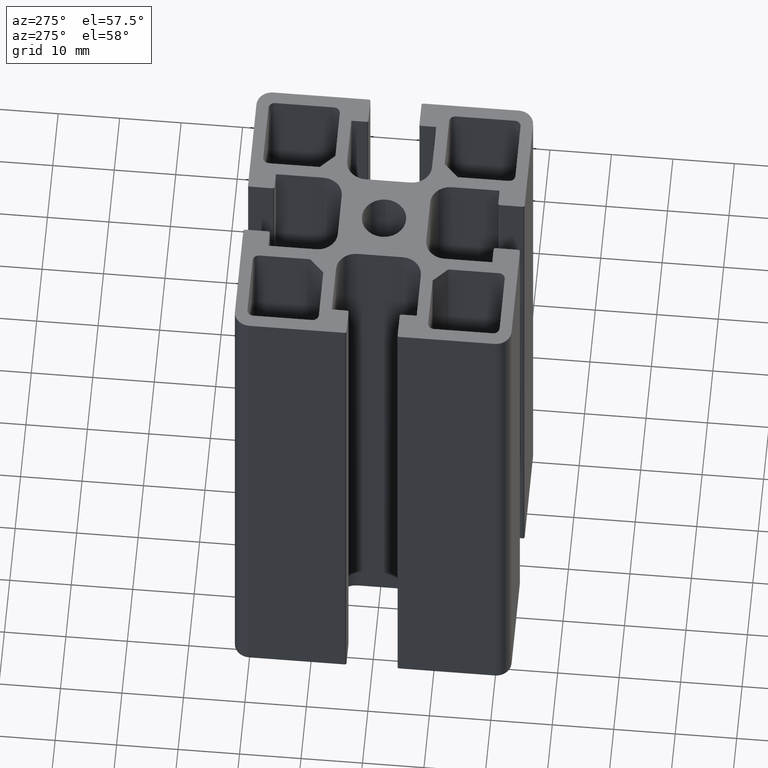
[diagram: clean part render]
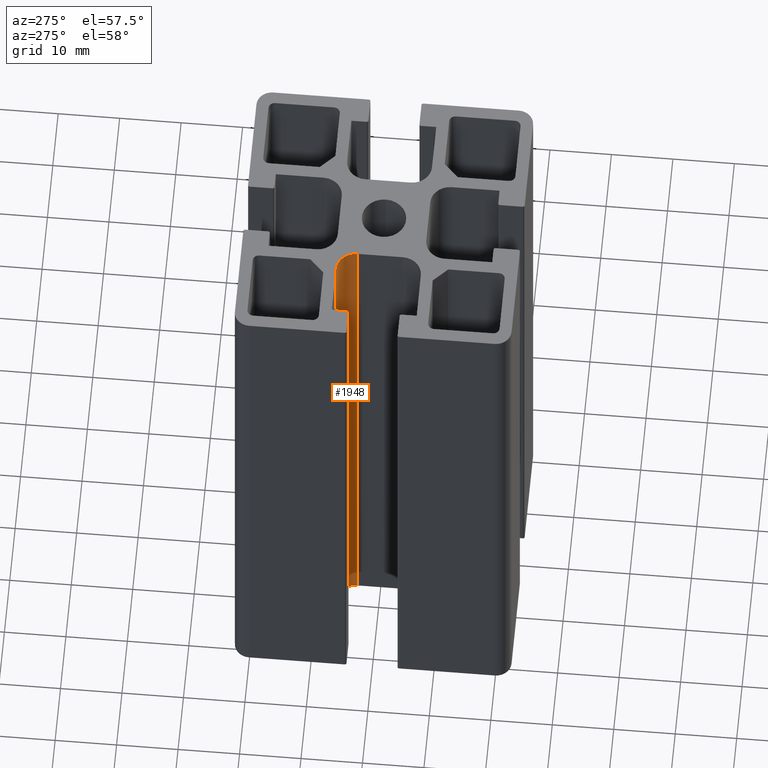
[diagram: same view with one face highlighted and labeled with its STEP entity id]
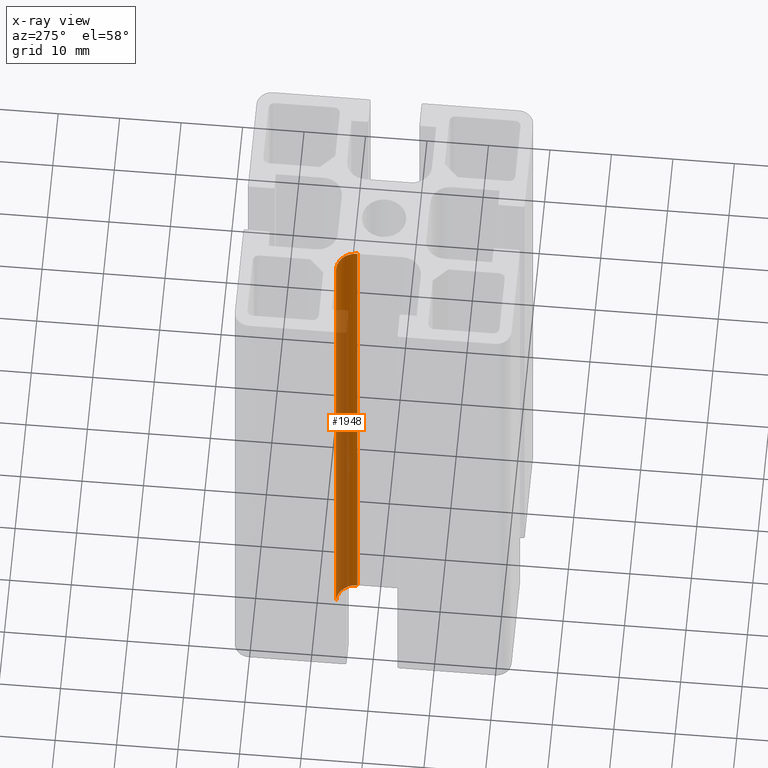
[diagram: x-ray of the same camera — body ghosted, the highlighted face saturated]
A machine part, auxiliary view. The second image highlights one B-rep face of the part: STEP entity #1948.
The next image is the same camera in x-ray: the body ghosted, the highlighted face saturated — about 49% of this face is hidden behind the body in this view.
In plain terms, the highlighted cylindrical surface (edge-blend (fillet) strip) has radius 3.2 mm, axis along (0, 0, 1).
Its self-contained STEP definition (entity closure, byte-faithful):
#70=CIRCLE('',#2094,3.2);
#71=CIRCLE('',#2095,3.2);
#130=CYLINDRICAL_SURFACE('',#2093,3.2);
#201=FACE_OUTER_BOUND('',#301,.T.);
#301=EDGE_LOOP('',(#1464,#1465,#1466,#1467));
#469=LINE('',#3067,#677);
#472=LINE('',#3075,#680);
#677=VECTOR('',#2483,100.);
#680=VECTOR('',#2490,100.);
#880=VERTEX_POINT('',#3063);
#882=VERTEX_POINT('',#3066);
#884=VERTEX_POINT('',#3072);
#885=VERTEX_POINT('',#3074);
#1123=EDGE_CURVE('',#882,#880,#469,.T.);
#1126=EDGE_CURVE('',#884,#880,#70,.T.);
#1127=EDGE_CURVE('',#885,#884,#472,.T.);
#1128=EDGE_CURVE('',#882,#885,#71,.T.);
#1464=ORIENTED_EDGE('',*,*,#1126,.F.);
#1465=ORIENTED_EDGE('',*,*,#1127,.F.);
#1466=ORIENTED_EDGE('',*,*,#1128,.F.);
#1467=ORIENTED_EDGE('',*,*,#1123,.T.);
#1948=ADVANCED_FACE('',(#201),#130,.F.);
#2093=AXIS2_PLACEMENT_3D('',#3071,#2486,#2487);
#2094=AXIS2_PLACEMENT_3D('',#3073,#2488,#2489);
#2095=AXIS2_PLACEMENT_3D('',#3076,#2491,#2492);
#2483=DIRECTION('',(0.,0.,1.));
#2486=DIRECTION('center_axis',(0.,0.,1.));
#2487=DIRECTION('ref_axis',(1.,0.,0.));
#2488=DIRECTION('center_axis',(0.,0.,-1.));
#2489=DIRECTION('ref_axis',(1.,0.,0.));
#2490=DIRECTION('',(0.,0.,1.));
#2491=DIRECTION('center_axis',(0.,0.,1.));
#2492=DIRECTION('ref_axis',(1.,0.,0.));
#3063=CARTESIAN_POINT('',(-7.19999999999999,3.7,100.));
#3066=CARTESIAN_POINT('',(-7.19999999999999,3.7,0.));
#3067=CARTESIAN_POINT('',(-7.19999999999999,3.7,0.));
#3071=CARTESIAN_POINT('Origin',(-10.4,3.7,0.));
#3072=CARTESIAN_POINT('',(-10.4,6.9,100.));
#3073=CARTESIAN_POINT('Origin',(-10.4,3.7,100.));
#3074=CARTESIAN_POINT('',(-10.4,6.9,0.));
#3075=CARTESIAN_POINT('',(-10.4,6.9,0.));
#3076=CARTESIAN_POINT('Origin',(-10.4,3.7,0.));